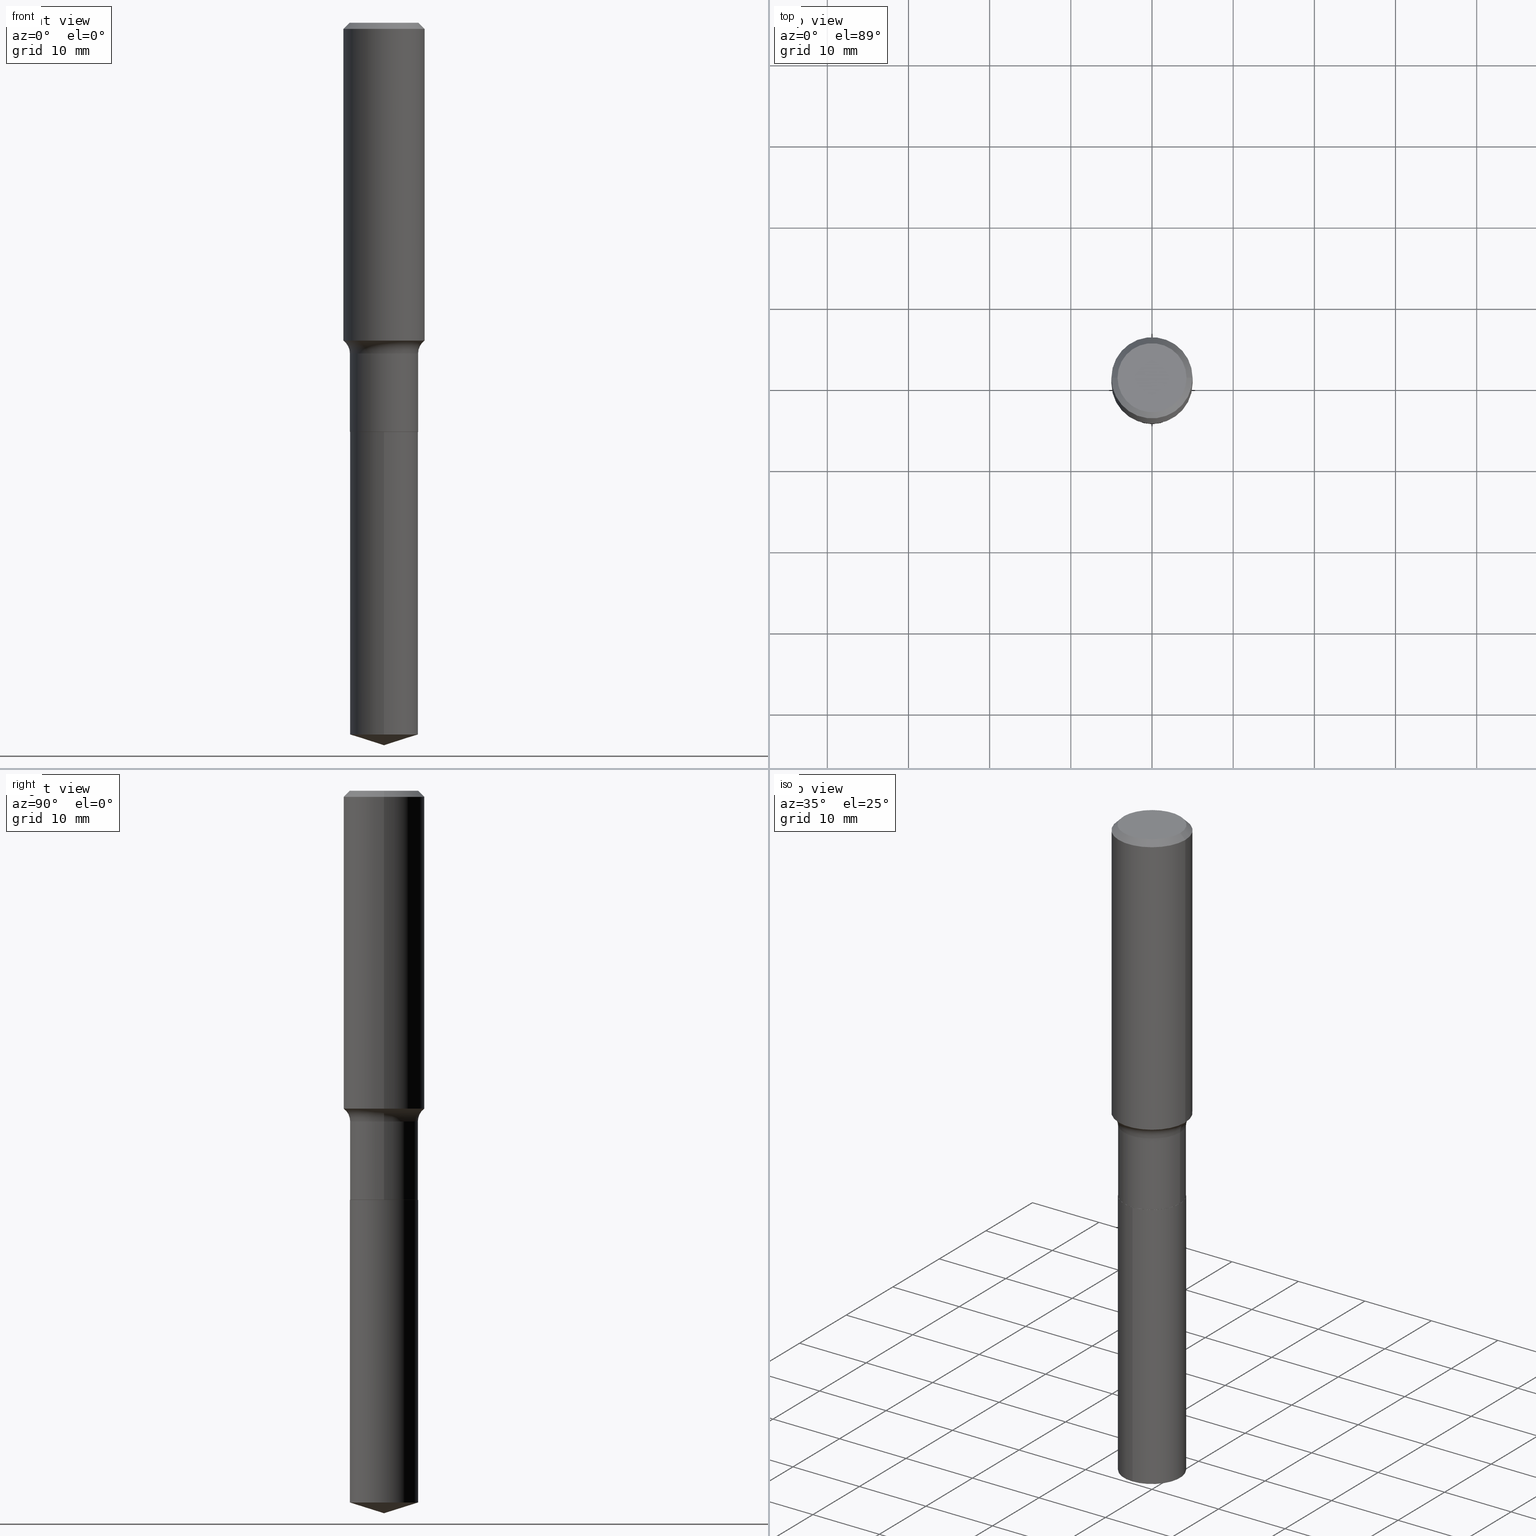
[diagram: canonical four-view strip — front | top / right | iso, engineering-drawing reading convention]
A machine part, canonical four-view strip (front | top / right | iso — engineering-drawing reading convention). The complete STEP part file that produces these views, byte-faithful:
ISO-10303-21;
HEADER;
FILE_DESCRIPTION (( 'STEP AP203' ),
    '1' );
FILE_NAME ('63182.STEP',
    '2024-04-19T14:58:55',
    ( '' ),
    ( '' ),
    'SwSTEP 2.0',
    'SolidWorks 2023',
    '' );
FILE_SCHEMA (( 'CONFIG_CONTROL_DESIGN' ));
ENDSEC;

DATA;
#1 = CARTESIAN_POINT ( 'NONE',  ( -0.1968500000000001082, 1.398703375343757985E-15, -9.682923725166787881E-30 ) ) ;
#2 = DIRECTION ( 'NONE',  ( 1.000000000000000000, -6.982962677686265922E-15, 4.876176775795934672E-29 ) ) ;
#3 = AXIS2_PLACEMENT_3D ( 'NONE', #464, #320, #470 ) ;
#4 = CALENDAR_DATE ( 2024, 19, 4 ) ;
#5 = PERSON_AND_ORGANIZATION_ROLE ( 'classification_officer' ) ;
#6 = ORIENTED_EDGE ( 'NONE', *, *, #330, .F. ) ;
#7 = APPROVAL_STATUS ( 'not_yet_approved' ) ;
#8 = APPROVAL_ROLE ( '' ) ;
#9 = VECTOR ( 'NONE', #331, 39.37007874015748143 ) ;
#10 = CARTESIAN_POINT ( 'NONE',  ( -0.1648499999999999965, -5.756467572632041393E-15, -1.984199999999999298 ) ) ;
#11 = DATE_TIME_ROLE ( 'creation_date' ) ;
#12 = ORIENTED_EDGE ( 'NONE', *, *, #227, .F. ) ;
#13 = DIRECTION ( 'NONE',  ( -2.445468806185136597E-29, 3.491481338843145583E-15, 1.000000000000000000 ) ) ;
#14 = ORIENTED_EDGE ( 'NONE', *, *, #233, .T. ) ;
#15 = DIRECTION ( 'NONE',  ( -2.445468806185136597E-29, 3.491481338843145583E-15, 1.000000000000000000 ) ) ;
#16 = DIRECTION ( 'NONE',  ( -2.445468806185136597E-29, 3.491481338843145583E-15, 1.000000000000000000 ) ) ;
#17 = CALENDAR_DATE ( 2024, 19, 4 ) ;
#18 = ORIENTED_EDGE ( 'NONE', *, *, #197, .F. ) ;
#19 = ADVANCED_FACE ( 'NONE', ( #44 ), #261, .T. ) ;
#20 = DIRECTION ( 'NONE',  ( 7.105427357601001859E-15, 1.000000000000000000, -3.491481338843145583E-15 ) ) ;
#21 = CIRCLE ( 'NONE', #365, 0.1968500000000001915 ) ;
#22 = ORIENTED_EDGE ( 'NONE', *, *, #336, .T. ) ;
#23 = DIRECTION ( 'NONE',  ( 1.000000000000000000, -6.982962677686265922E-15, 4.876176775795934672E-29 ) ) ;
#24 = MANIFOLD_SOLID_BREP ( 'Body-Move/Copy2[2]', #95 ) ;
#25 = ORIENTED_EDGE ( 'NONE', *, *, #73, .T. ) ;
#26 = COORDINATED_UNIVERSAL_TIME_OFFSET ( 5, 0, .BEHIND. ) ;
#27 = FACE_OUTER_BOUND ( 'NONE', #326, .T. ) ;
#28 = MANIFOLD_SOLID_BREP ( 'Body-Move/Copy2[1]', #307 ) ;
#29 = CARTESIAN_POINT ( 'NONE',  ( -0.1653499999999999415, -5.088136812037507481E-15, -1.603899999999999881 ) ) ;
#30 = CIRCLE ( 'NONE', #445, 0.07800000000000002764 ) ;
#31 = CARTESIAN_POINT ( 'NONE',  ( -0.1653499999999999970, 1.174882413579325636E-15, -8.133459171736486599E-30 ) ) ;
#32 = CARTESIAN_POINT ( 'NONE',  ( -1.154632878755375361E-15, -0.1653500000000069081, -1.984199999999999076 ) ) ;
#33 = CARTESIAN_POINT ( 'NONE',  ( 8.567579490425571206E-29, -1.223537480620358617E-14, -3.503899999999999793 ) ) ;
#34 = DIRECTION ( 'NONE',  ( -2.445468806185136597E-29, 3.491481338843145583E-15, 1.000000000000000000 ) ) ;
#35 = DIRECTION ( 'NONE',  ( 1.000000000000000000, -6.982962677686265922E-15, 4.876176775795935793E-29 ) ) ;
#36 = CARTESIAN_POINT ( 'NONE',  ( 3.769142679938693418E-29, -5.381336820636961571E-15, -1.541276122764555279 ) ) ;
#37 = APPLICATION_CONTEXT ( 'configuration controlled 3d designs of mechanical parts and assemblies' ) ;
#38 = CARTESIAN_POINT ( 'NONE',  ( 4.852299205232546160E-29, -6.927797272532566919E-15, -1.984199999999999298 ) ) ;
#39 = DIRECTION ( 'NONE',  ( -2.445468806185136877E-29, 3.491481338843145188E-15, 1.000000000000000000 ) ) ;
#40 = AXIS2_PLACEMENT_3D ( 'NONE', #117, #110, #263 ) ;
#41 = AXIS2_PLACEMENT_3D ( 'NONE', #270, #168, #79 ) ;
#42 = DIRECTION ( 'NONE',  ( -2.445155252839855977E-29, 3.491930365079935530E-15, 1.000000000000000000 ) ) ;
#43 = DIRECTION ( 'NONE',  ( -2.445468806185136597E-29, 3.491481338843145583E-15, 1.000000000000000000 ) ) ;
#44 = FACE_OUTER_BOUND ( 'NONE', #388, .T. ) ;
#45 = ADVANCED_FACE ( 'NONE', ( #425 ), #98, .T. ) ;
#46 = DIRECTION ( 'NONE',  ( -6.982962677686265133E-15, -1.000000000000000000, 3.304321734096478263E-15 ) ) ;
#47 = DIRECTION ( 'NONE',  ( -6.982962677686265133E-15, -1.000000000000000000, 3.304321734096478263E-15 ) ) ;
#48 = CIRCLE ( 'NONE', #173, 0.1968500000000000527 ) ;
#49 = AXIS2_PLACEMENT_3D ( 'NONE', #453, #115, #491 ) ;
#50 = ORIENTED_EDGE ( 'NONE', *, *, #433, .F. ) ;
#51 = EDGE_CURVE ( 'NONE', #319, #81, #244, .T. ) ;
#52 = EDGE_LOOP ( 'NONE', ( #252, #14, #175 ) ) ;
#53 = AXIS2_PLACEMENT_3D ( 'NONE', #265, #34, #407 ) ;
#54 = LOCAL_TIME ( 10, 58, 55.00000000000000000, #26 ) ;
#55 = EDGE_CURVE ( 'NONE', #72, #324, #429, .T. ) ;
#56 = ORIENTED_EDGE ( 'NONE', *, *, #55, .F. ) ;
#57 = ADVANCED_FACE ( 'NONE', ( #442 ), #287, .T. ) ;
#58 = VERTEX_POINT ( 'NONE', #103 ) ;
#59 = LINE ( 'NONE', #467, #371 ) ;
#60 = PERSON_AND_ORGANIZATION_ROLE ( 'creator' ) ;
#61 = AXIS2_PLACEMENT_3D ( 'NONE', #411, #405, #300 ) ;
#62 = ORIENTED_EDGE ( 'NONE', *, *, #64, .T. ) ;
#63 = ORGANIZATION ( 'UNSPECIFIED', 'UNSPECIFIED', '' ) ;
#64 = EDGE_CURVE ( 'NONE', #455, #282, #255, .T. ) ;
#65 = DIRECTION ( 'NONE',  ( -2.445155252839855977E-29, 3.491930365079935530E-15, 1.000000000000000000 ) ) ;
#66 = LINE ( 'NONE', #32, #237 ) ;
#67 = AXIS2_PLACEMENT_3D ( 'NONE', #396, #69, #364 ) ;
#68 = PLANE ( 'NONE',  #398 ) ;
#69 = DIRECTION ( 'NONE',  ( -2.445468806185136597E-29, 3.491481338843145583E-15, 1.000000000000000000 ) ) ;
#70 = DIRECTION ( 'NONE',  ( -2.445155252839855977E-29, 3.491930365079935136E-15, 1.000000000000000000 ) ) ;
#71 = FACE_OUTER_BOUND ( 'NONE', #472, .T. ) ;
#72 = VERTEX_POINT ( 'NONE', #29 ) ;
#73 = EDGE_CURVE ( 'NONE', #282, #373, #444, .T. ) ;
#74 = FACE_OUTER_BOUND ( 'NONE', #248, .T. ) ;
#75 = CIRCLE ( 'NONE', #214, 0.07800000000000002764 ) ;
#76 = CARTESIAN_POINT ( 'NONE',  ( 4.852299205232546721E-29, -6.927797272532567708E-15, -1.984199999999999520 ) ) ;
#77 = AXIS2_PLACEMENT_3D ( 'NONE', #102, #258, #192 ) ;
#78 = DIRECTION ( 'NONE',  ( 1.000000000000000000, -6.982962677686266711E-15, 0.000000000000000000 ) ) ;
#79 = DIRECTION ( 'NONE',  ( 1.000000000000000000, -6.982962677686266711E-15, 0.000000000000000000 ) ) ;
#80 = APPLICATION_PROTOCOL_DEFINITION ( 'international standard', 'config_control_design', 1994, #108 ) ;
#81 = VERTEX_POINT ( 'NONE', #262 ) ;
#82 = PERSON_AND_ORGANIZATION ( #156, #63 ) ;
#83 = VERTEX_POINT ( 'NONE', #402 ) ;
#84 = DIRECTION ( 'NONE',  ( -6.982962677686265922E-15, -1.000000000000000000, 3.500519750498711532E-15 ) ) ;
#85 = ADVANCED_FACE ( 'NONE', ( #395 ), #213, .T. ) ;
#86 = CIRCLE ( 'NONE', #61, 0.1653500000000000247 ) ;
#87 =( GEOMETRIC_REPRESENTATION_CONTEXT ( 3 ) GLOBAL_UNCERTAINTY_ASSIGNED_CONTEXT ( ( #449 ) ) GLOBAL_UNIT_ASSIGNED_CONTEXT ( ( #375, #447, #486 ) ) REPRESENTATION_CONTEXT ( 'NONE', 'WORKASPACE' ) );
#88 = APPROVAL_PERSON_ORGANIZATION ( #424, #137, #235 ) ;
#89 = ORIENTED_EDGE ( 'NONE', *, *, #157, .F. ) ;
#90 = CARTESIAN_POINT ( 'NONE',  ( 7.220858017463213864E-31, -1.030947152326917226E-16, -0.02952750000000021330 ) ) ;
#91 = PERSON_AND_ORGANIZATION ( #156, #63 ) ;
#92 = ORIENTED_EDGE ( 'NONE', *, *, #238, .F. ) ;
#93 = EDGE_CURVE ( 'NONE', #129, #290, #172, .T. ) ;
#94 = ORIENTED_EDGE ( 'NONE', *, *, #245, .F. ) ;
#95 = CLOSED_SHELL ( 'NONE', ( #57, #403, #118, #368, #19, #130, #105, #45, #85, #382, #492, #332 ) ) ;
#96 = EDGE_CURVE ( 'NONE', #136, #72, #177, .T. ) ;
#97 = CIRCLE ( 'NONE', #3, 0.1653499999999999970 ) ;
#98 = CYLINDRICAL_SURFACE ( 'NONE', #414, 0.1968500000000001082 ) ;
#99 = LOCAL_TIME ( 10, 58, 55.00000000000000000, #280 ) ;
#100 = EDGE_LOOP ( 'NONE', ( #351, #431 ) ) ;
#101 = ORIENTED_EDGE ( 'NONE', *, *, #51, .F. ) ;
#102 = CARTESIAN_POINT ( 'NONE',  ( -1.001697619218021790E-46, 1.430158722866389718E-32, 4.096137381448108366E-18 ) ) ;
#103 = CARTESIAN_POINT ( 'NONE',  ( -0.1673224999999999851, 1.219954130253505460E-15, 4.096137381439757534E-18 ) ) ;
#104 = CARTESIAN_POINT ( 'NONE',  ( 0.2433499999999999552, -7.299290886985473134E-15, -1.603899999999999881 ) ) ;
#105 = ADVANCED_FACE ( 'NONE', ( #363 ), #264, .F. ) ;
#106 = PLANE ( 'NONE',  #308 ) ;
#107 = CIRCLE ( 'NONE', #278, 0.1653499999999999415 ) ;
#108 = APPLICATION_CONTEXT ( 'configuration controlled 3d designs of mechanical parts and assemblies' ) ;
#109 = CC_DESIGN_PERSON_AND_ORGANIZATION_ASSIGNMENT ( #348, #276, ( #485 ) ) ;
#110 = DIRECTION ( 'NONE',  ( -2.445468806185136597E-29, 3.491481338843145583E-15, 1.000000000000000000 ) ) ;
#111 = DIRECTION ( 'NONE',  ( 1.000000000000000000, -6.982962677686268288E-15, 0.000000000000000000 ) ) ;
#112 = ADVANCED_FACE ( 'NONE', ( #27 ), #106, .F. ) ;
#113 = CIRCLE ( 'NONE', #40, 0.1653500000000000247 ) ;
#114 = DIRECTION ( 'NONE',  ( 2.445468806185136597E-29, -3.491481338843145583E-15, -1.000000000000000000 ) ) ;
#115 = DIRECTION ( 'NONE',  ( 0.000000000000000000, 0.000000000000000000, 1.000000000000000000 ) ) ;
#116 = ORIENTED_EDGE ( 'NONE', *, *, #289, .T. ) ;
#117 = CARTESIAN_POINT ( 'NONE',  ( 4.851076470829453919E-29, -6.926051531863145416E-15, -1.983699999999999353 ) ) ;
#118 = ADVANCED_FACE ( 'NONE', ( #193 ), #341, .T. ) ;
#119 = DIRECTION ( 'NONE',  ( -6.982962677686265133E-15, -1.000000000000000000, 3.304321734096478263E-15 ) ) ;
#120 = APPROVAL_DATE_TIME ( #347, #242 ) ;
#121 = CARTESIAN_POINT ( 'NONE',  ( -1.001697619218021790E-46, 1.430158722866389718E-32, 4.096137381448108366E-18 ) ) ;
#122 = CONICAL_SURFACE ( 'NONE', #147, 0.1648499999999999965, 0.7853981633975849475 ) ;
#123 = ORIENTED_EDGE ( 'NONE', *, *, #55, .T. ) ;
#124 = APPROVAL_STATUS ( 'not_yet_approved' ) ;
#125 = CONICAL_SURFACE ( 'NONE', #266, 0.1968500000000000527, 0.7853981633974456145 ) ;
#126 = CC_DESIGN_PERSON_AND_ORGANIZATION_ASSIGNMENT ( #82, #317, ( #189 ) ) ;
#127 = ORIENTED_EDGE ( 'NONE', *, *, #267, .T. ) ;
#128 = DATE_AND_TIME ( #413, #345 ) ;
#129 = VERTEX_POINT ( 'NONE', #436 ) ;
#130 = ADVANCED_FACE ( 'NONE', ( #391 ), #216, .T. ) ;
#131 = EDGE_LOOP ( 'NONE', ( #22, #459, #419, #101 ) ) ;
#132 = DIRECTION ( 'NONE',  ( 1.000000000000000000, -6.982962677686266711E-15, 0.000000000000000000 ) ) ;
#133 = AXIS2_PLACEMENT_3D ( 'NONE', #369, #184, #183 ) ;
#134 = VECTOR ( 'NONE', #376, 39.37007874015748143 ) ;
#135 = CC_DESIGN_APPROVAL ( #164, ( #328 ) ) ;
#136 = VERTEX_POINT ( 'NONE', #155 ) ;
#137 = APPROVAL ( #7, 'UNSPECIFIED' ) ;
#138 = APPROVAL_STATUS ( 'not_yet_approved' ) ;
#139 = ORIENTED_EDGE ( 'NONE', *, *, #456, .F. ) ;
#140 = CARTESIAN_POINT ( 'NONE',  ( 0.000000000000000000, 0.000000000000000000, 0.000000000000000000 ) ) ;
#141 = EDGE_LOOP ( 'NONE', ( #355, #408, #159, #430 ) ) ;
#142 = CARTESIAN_POINT ( 'NONE',  ( 7.220858017463213864E-31, -1.030947152326917226E-16, -0.02952750000000021330 ) ) ;
#143 = AXIS2_PLACEMENT_3D ( 'NONE', #153, #43, #2 ) ;
#144 = EDGE_CURVE ( 'NONE', #243, #417, #151, .T. ) ;
#145 = DIRECTION ( 'NONE',  ( -2.445468806185136597E-29, 3.491481338843145583E-15, 1.000000000000000000 ) ) ;
#146 = LENGTH_MEASURE_WITH_UNIT ( LENGTH_MEASURE( 0.02539999999999999897 ), #185 );
#147 = AXIS2_PLACEMENT_3D ( 'NONE', #306, #450, #111 ) ;
#148 = DIRECTION ( 'NONE',  ( -6.982962677686265922E-15, -1.000000000000000000, 3.500519750498711532E-15 ) ) ;
#149 = CIRCLE ( 'NONE', #77, 0.1673224999999999851 ) ;
#150 = DIRECTION ( 'NONE',  ( 1.000000000000000000, -6.982962677686266711E-15, 0.000000000000000000 ) ) ;
#151 = LINE ( 'NONE', #377, #205 ) ;
#152 = DIRECTION ( 'NONE',  ( -6.982962677686265133E-15, -1.000000000000000000, 3.304321734096478263E-15 ) ) ;
#153 = CARTESIAN_POINT ( 'NONE',  ( 0.000000000000000000, 0.000000000000000000, 0.000000000000000000 ) ) ;
#154 = CIRCLE ( 'NONE', #219, 0.1653499999999999970 ) ;
#155 = CARTESIAN_POINT ( 'NONE',  ( -0.1653500000000000247, -5.088136812037506692E-15, -1.983699999999999353 ) ) ;
#156 = PERSON ( 'UNSPECIFIED', 'UNSPECIFIED', 'UNSPECIFIED', ('UNSPECIFIED'), ('UNSPECIFIED'), ('UNSPECIFIED') ) ;
#157 = EDGE_CURVE ( 'NONE', #83, #417, #160, .T. ) ;
#158 = EDGE_CURVE ( 'NONE', #290, #129, #154, .T. ) ;
#159 = ORIENTED_EDGE ( 'NONE', *, *, #412, .T. ) ;
#160 = LINE ( 'NONE', #304, #134 ) ;
#161 = ORIENTED_EDGE ( 'NONE', *, *, #197, .T. ) ;
#162 = COORDINATED_UNIVERSAL_TIME_OFFSET ( 5, 0, .BEHIND. ) ;
#163 = TOROIDAL_SURFACE ( 'NONE', #438, 0.2433499999999999552, 0.07799999999999999989 ) ;
#164 = APPROVAL ( #138, 'UNSPECIFIED' ) ;
#165 = EDGE_LOOP ( 'NONE', ( #50, #127, #123, #286 ) ) ;
#166 = DIRECTION ( 'NONE',  ( 1.000000000000000000, -6.982962677686266711E-15, 4.876176775795935793E-29 ) ) ;
#167 = DIRECTION ( 'NONE',  ( 6.776566513254256560E-15, 0.9537169507482285979, 0.3007057995042677900 ) ) ;
#168 = DIRECTION ( 'NONE',  ( -2.445468806185136597E-29, 3.491481338843145583E-15, 1.000000000000000000 ) ) ;
#169 = ORIENTED_EDGE ( 'NONE', *, *, #217, .T. ) ;
#170 = ORIENTED_EDGE ( 'NONE', *, *, #144, .T. ) ;
#171 = CARTESIAN_POINT ( 'NONE',  ( 0.1648499999999999965, -8.078938669949147393E-15, -1.984199999999999298 ) ) ;
#172 = CIRCLE ( 'NONE', #187, 0.1653499999999999970 ) ;
#173 = AXIS2_PLACEMENT_3D ( 'NONE', #90, #16, #132 ) ;
#174 = LOCAL_TIME ( 10, 58, 55.00000000000000000, #480 ) ;
#175 = ORIENTED_EDGE ( 'NONE', *, *, #73, .F. ) ;
#176 = DIRECTION ( 'NONE',  ( -2.445468806185136597E-29, 3.491481338843145583E-15, 1.000000000000000000 ) ) ;
#177 = LINE ( 'NONE', #31, #335 ) ;
#178 = ORIENTED_EDGE ( 'NONE', *, *, #238, .T. ) ;
#179 = ORIENTED_EDGE ( 'NONE', *, *, #397, .F. ) ;
#180 = CARTESIAN_POINT ( 'NONE',  ( -0.1968500000000001915, -3.982633445293202995E-15, -1.541276122764555279 ) ) ;
#181 = DIRECTION ( 'NONE',  ( 1.000000000000000000, -6.982962677686268288E-15, 4.883557194083112901E-29 ) ) ;
#182 = EDGE_CURVE ( 'NONE', #243, #58, #241, .T. ) ;
#183 = DIRECTION ( 'NONE',  ( -6.982962677686265133E-15, -1.000000000000000000, 3.304321734096478263E-15 ) ) ;
#184 = DIRECTION ( 'NONE',  ( -2.445155252839855977E-29, 3.491930365079935530E-15, 1.000000000000000000 ) ) ;
#185 =( LENGTH_UNIT ( ) NAMED_UNIT ( * ) SI_UNIT ( $, .METRE. ) );
#186 = DIRECTION ( 'NONE',  ( -2.445468806185136597E-29, 3.491481338843145583E-15, 1.000000000000000000 ) ) ;
#187 = AXIS2_PLACEMENT_3D ( 'NONE', #76, #65, #152 ) ;
#188 = CARTESIAN_POINT ( 'NONE',  ( -0.1648499999999999965, -5.753818345457930192E-15, -1.984199999999999298 ) ) ;
#189 = PRODUCT_DEFINITION_FORMATION_WITH_SPECIFIED_SOURCE ( 'ANY', '', #485, .NOT_KNOWN. ) ;
#190 = EDGE_CURVE ( 'NONE', #81, #324, #312, .T. ) ;
#191 = DIRECTION ( 'NONE',  ( -0.7071067811865455743, 2.468850131082236945E-15, -0.7071067811865493491 ) ) ;
#192 = DIRECTION ( 'NONE',  ( 1.000000000000000000, -6.982962677686267499E-15, 4.876294436782262290E-29 ) ) ;
#193 = FACE_OUTER_BOUND ( 'NONE', #383, .T. ) ;
#194 = CARTESIAN_POINT ( 'NONE',  ( 8.567579490425571206E-29, -1.223537480620358617E-14, -3.503899999999999793 ) ) ;
#195 = DIRECTION ( 'NONE',  ( -1.000000000000000000, 7.105427357601001859E-15, 0.000000000000000000 ) ) ;
#196 = DIRECTION ( 'NONE',  ( 1.000000000000000000, -6.982962677686267499E-15, 4.876294436782262290E-29 ) ) ;
#197 = EDGE_CURVE ( 'NONE', #58, #474, #451, .T. ) ;
#198 = VECTOR ( 'NONE', #309, 39.37007874015748143 ) ;
#199 = PERSON_AND_ORGANIZATION_ROLE ( 'design_supplier' ) ;
#200 = ORIENTED_EDGE ( 'NONE', *, *, #93, .F. ) ;
#201 = ORIENTED_EDGE ( 'NONE', *, *, #51, .T. ) ;
#202 = APPLICATION_PROTOCOL_DEFINITION ( 'international standard', 'config_control_design', 1994, #37 ) ;
#203 = ORIENTED_EDGE ( 'NONE', *, *, #182, .F. ) ;
#204 = ORIENTED_EDGE ( 'NONE', *, *, #182, .T. ) ;
#205 = VECTOR ( 'NONE', #379, 39.37007874015748854 ) ;
#206 = ORIENTED_EDGE ( 'NONE', *, *, #96, .T. ) ;
#207 = CC_DESIGN_PERSON_AND_ORGANIZATION_ASSIGNMENT ( #91, #60, ( #328 ) ) ;
#208 = ORIENTED_EDGE ( 'NONE', *, *, #352, .F. ) ;
#209 = CARTESIAN_POINT ( 'NONE',  ( -0.2433499999999999552, -3.870881171898316545E-15, -1.603899999999999881 ) ) ;
#210 = DIRECTION ( 'NONE',  ( -2.445468806185136597E-29, 3.491481338843145583E-15, 1.000000000000000000 ) ) ;
#211 = DIMENSIONAL_EXPONENTS ( 1.000000000000000000, 0.000000000000000000, 0.000000000000000000, 0.000000000000000000, 0.000000000000000000, 0.000000000000000000, 0.000000000000000000 ) ;
#212 = ORIENTED_EDGE ( 'NONE', *, *, #233, .F. ) ;
#213 = CONICAL_SURFACE ( 'NONE', #384, 0.1968500000000000527, 0.7853981633974456145 ) ;
#214 = AXIS2_PLACEMENT_3D ( 'NONE', #104, #394, #334 ) ;
#215 = ORIENTED_EDGE ( 'NONE', *, *, #441, .T. ) ;
#216 = CYLINDRICAL_SURFACE ( 'NONE', #143, 0.1653499999999999970 ) ;
#217 = EDGE_CURVE ( 'NONE', #136, #81, #113, .T. ) ;
#218 = AXIS2_PLACEMENT_3D ( 'NONE', #140, #210, #23 ) ;
#219 = AXIS2_PLACEMENT_3D ( 'NONE', #346, #484, #47 ) ;
#220 = ADVANCED_FACE ( 'NONE', ( #272 ), #458, .T. ) ;
#221 = FACE_OUTER_BOUND ( 'NONE', #100, .T. ) ;
#222 = CC_DESIGN_APPROVAL ( #137, ( #189 ) ) ;
#223 = CARTESIAN_POINT ( 'NONE',  ( 1.174882413579409452E-15, 0.1653499999999878955, -3.451765345258860584 ) ) ;
#224 = LINE ( 'NONE', #435, #9 ) ;
#225 = CARTESIAN_POINT ( 'NONE',  ( 7.148409496949961004E-29, -3.639636648311379260E-15, -1.984199999999999520 ) ) ;
#226 = ADVANCED_FACE ( 'NONE', ( #74 ), #274, .T. ) ;
#227 = EDGE_CURVE ( 'NONE', #324, #72, #107, .T. ) ;
#228 = DIRECTION ( 'NONE',  ( -2.438088387897960049E-29, 3.491481338843145188E-15, 1.000000000000000000 ) ) ;
#229 = AXIS2_PLACEMENT_3D ( 'NONE', #476, #297, #443 ) ;
#230 = CARTESIAN_POINT ( 'NONE',  ( 4.852299205232546721E-29, -6.927797272532567708E-15, -1.984199999999999520 ) ) ;
#231 = CARTESIAN_POINT ( 'NONE',  ( 4.852299205232546721E-29, -6.927797272532567708E-15, -1.984199999999999520 ) ) ;
#232 = DIRECTION ( 'NONE',  ( -2.445468806185136597E-29, 3.491481338843145583E-15, 1.000000000000000000 ) ) ;
#233 = EDGE_CURVE ( 'NONE', #455, #373, #59, .T. ) ;
#234 = MECHANICAL_CONTEXT ( 'NONE', #108, 'mechanical' ) ;
#235 = APPROVAL_ROLE ( '' ) ;
#236 = CONICAL_SURFACE ( 'NONE', #288, 124.8659371009148060, 1.265363707695891016 ) ;
#237 = VECTOR ( 'NONE', #70, 39.37007874015748143 ) ;
#238 = EDGE_CURVE ( 'NONE', #373, #282, #97, .T. ) ;
#239 = ORIENTED_EDGE ( 'NONE', *, *, #93, .T. ) ;
#240 = DIRECTION ( 'NONE',  ( 0.7071067811866441621, -2.468850131083269169E-15, 0.7071067811864508723 ) ) ;
#241 = CIRCLE ( 'NONE', #482, 0.1673224999999999851 ) ;
#242 = APPROVAL ( #124, 'UNSPECIFIED' ) ;
#243 = VERTEX_POINT ( 'NONE', #285 ) ;
#244 = LINE ( 'NONE', #171, #359 ) ;
#245 = EDGE_CURVE ( 'NONE', #417, #474, #48, .T. ) ;
#246 = ORIENTED_EDGE ( 'NONE', *, *, #479, .T. ) ;
#247 = DATE_AND_TIME ( #17, #54 ) ;
#248 = EDGE_LOOP ( 'NONE', ( #25, #422, #310, #139 ) ) ;
#249 = AXIS2_PLACEMENT_3D ( 'NONE', #230, #409, #46 ) ;
#250 = CARTESIAN_POINT ( 'NONE',  ( 7.220858017463213864E-31, -1.030947152326917226E-16, -0.02952750000000021330 ) ) ;
#251 = CARTESIAN_POINT ( 'NONE',  ( 0.000000000000000000, 0.000000000000000000, 0.000000000000000000 ) ) ;
#252 = ORIENTED_EDGE ( 'NONE', *, *, #64, .F. ) ;
#253 = ORIENTED_EDGE ( 'NONE', *, *, #190, .F. ) ;
#254 = FACE_OUTER_BOUND ( 'NONE', #277, .T. ) ;
#255 = LINE ( 'NONE', #33, #343 ) ;
#256 = PRODUCT_RELATED_PRODUCT_CATEGORY ( 'detail', '', ( #485 ) ) ;
#257 = AXIS2_PLACEMENT_3D ( 'NONE', #481, #145, #298 ) ;
#258 = DIRECTION ( 'NONE',  ( -2.445468806185136597E-29, 3.491481338843145583E-15, 1.000000000000000000 ) ) ;
#259 = VECTOR ( 'NONE', #465, 39.37007874015748143 ) ;
#260 = ADVANCED_FACE ( 'NONE', ( #386 ), #236, .T. ) ;
#261 = CYLINDRICAL_SURFACE ( 'NONE', #218, 0.1653499999999999970 ) ;
#262 = CARTESIAN_POINT ( 'NONE',  ( 0.1653500000000000247, -8.080684410618569686E-15, -1.983699999999999353 ) ) ;
#263 = DIRECTION ( 'NONE',  ( 1.000000000000000000, -6.982962677686269866E-15, 0.000000000000000000 ) ) ;
#264 = TOROIDAL_SURFACE ( 'NONE', #257, 0.2433499999999999552, 0.07799999999999999989 ) ;
#265 = CARTESIAN_POINT ( 'NONE',  ( 4.852299205232546160E-29, -6.927797272532566919E-15, -1.984199999999999298 ) ) ;
#266 = AXIS2_PLACEMENT_3D ( 'NONE', #142, #295, #440 ) ;
#267 = EDGE_CURVE ( 'NONE', #385, #72, #30, .T. ) ;
#268 = CARTESIAN_POINT ( 'NONE',  ( 4.852299205232546721E-29, -6.927797272532567708E-15, -1.984199999999999520 ) ) ;
#269 = DIRECTION ( 'NONE',  ( 2.445155252839855977E-29, -3.491930365079935136E-15, -1.000000000000000000 ) ) ;
#270 = CARTESIAN_POINT ( 'NONE',  ( 3.769142679938693418E-29, -5.381336820636961571E-15, -1.541276122764555279 ) ) ;
#271 = CARTESIAN_POINT ( 'NONE',  ( 3.922287418240340052E-29, -5.599986919370520029E-15, -1.603899999999999881 ) ) ;
#272 = FACE_OUTER_BOUND ( 'NONE', #466, .T. ) ;
#273 = DATE_AND_TIME ( #468, #416 ) ;
#274 = CYLINDRICAL_SURFACE ( 'NONE', #249, 0.1653499999999999970 ) ;
#275 = CC_DESIGN_PERSON_AND_ORGANIZATION_ASSIGNMENT ( #283, #199, ( #189 ) ) ;
#276 = PERSON_AND_ORGANIZATION_ROLE ( 'design_owner' ) ;
#277 = EDGE_LOOP ( 'NONE', ( #215, #204 ) ) ;
#278 = AXIS2_PLACEMENT_3D ( 'NONE', #323, #13, #380 ) ;
#279 = CC_DESIGN_SECURITY_CLASSIFICATION ( #462, ( #189 ) ) ;
#280 = COORDINATED_UNIVERSAL_TIME_OFFSET ( 5, 0, .BEHIND. ) ;
#281 = PERSON_AND_ORGANIZATION ( #156, #63 ) ;
#282 = VERTEX_POINT ( 'NONE', #372 ) ;
#283 = PERSON_AND_ORGANIZATION ( #156, #63 ) ;
#284 = VERTEX_POINT ( 'NONE', #188 ) ;
#285 = CARTESIAN_POINT ( 'NONE',  ( 0.1673224999999999851, -1.300749711163072594E-15, 4.096137381456741925E-18 ) ) ;
#286 = ORIENTED_EDGE ( 'NONE', *, *, #412, .F. ) ;
#287 = CONICAL_SURFACE ( 'NONE', #67, 0.1648499999999999965, 0.7853981633975849475 ) ;
#288 = AXIS2_PLACEMENT_3D ( 'NONE', #356, #426, #84 ) ;
#289 = EDGE_CURVE ( 'NONE', #81, #136, #86, .T. ) ;
#290 = VERTEX_POINT ( 'NONE', #337 ) ;
#291 = ORIENTED_EDGE ( 'NONE', *, *, #433, .T. ) ;
#292 = ORIENTED_EDGE ( 'NONE', *, *, #157, .T. ) ;
#293 = ORIENTED_EDGE ( 'NONE', *, *, #158, .T. ) ;
#294 = ORIENTED_EDGE ( 'NONE', *, *, #96, .F. ) ;
#295 = DIRECTION ( 'NONE',  ( 2.445468806185136597E-29, -3.491481338843145583E-15, -1.000000000000000000 ) ) ;
#296 = APPROVAL_ROLE ( '' ) ;
#297 = DIRECTION ( 'NONE',  ( 2.438088387897960049E-29, -3.491481338843145188E-15, -1.000000000000000000 ) ) ;
#298 = DIRECTION ( 'NONE',  ( 1.000000000000000000, -6.982962677686268288E-15, 4.883557194083112901E-29 ) ) ;
#299 = DIRECTION ( 'NONE',  ( -6.659769872151631300E-15, -0.9537169507482265995, 0.3007057995042744514 ) ) ;
#300 = DIRECTION ( 'NONE',  ( 1.000000000000000000, -6.982962677686269866E-15, 0.000000000000000000 ) ) ;
#301 = FACE_OUTER_BOUND ( 'NONE', #469, .T. ) ;
#302 = DIRECTION ( 'NONE',  ( 1.000000000000000000, -6.982962677686267499E-15, 0.000000000000000000 ) ) ;
#303 = CARTESIAN_POINT ( 'NONE',  ( 0.1648499999999999965, -8.078938669949147393E-15, -1.984199999999999298 ) ) ;
#304 = CARTESIAN_POINT ( 'NONE',  ( 0.1968500000000001082, -1.374596203102542397E-15, 9.598753983154305062E-30 ) ) ;
#305 = EDGE_CURVE ( 'NONE', #83, #385, #21, .T. ) ;
#306 = CARTESIAN_POINT ( 'NONE',  ( 4.852299205232546160E-29, -6.927797272532566919E-15, -1.984199999999999298 ) ) ;
#307 = CLOSED_SHELL ( 'NONE', ( #226, #260, #322, #220, #112 ) ) ;
#308 = AXIS2_PLACEMENT_3D ( 'NONE', #231, #269, #374 ) ;
#309 = DIRECTION ( 'NONE',  ( -2.445468806185136877E-29, 3.491481338843145188E-15, 1.000000000000000000 ) ) ;
#310 = ORIENTED_EDGE ( 'NONE', *, *, #158, .F. ) ;
#311 = CIRCLE ( 'NONE', #41, 0.1968500000000001915 ) ;
#312 = LINE ( 'NONE', #457, #415 ) ;
#313 = EDGE_LOOP ( 'NONE', ( #294, #169, #432, #56 ) ) ;
#314 = CARTESIAN_POINT ( 'NONE',  ( 0.1968500000000000527, -1.477690918335233688E-15, -0.02952750000000021330 ) ) ;
#315 = EDGE_LOOP ( 'NONE', ( #203, #170, #434, #18 ) ) ;
#316 = CALENDAR_DATE ( 2024, 19, 4 ) ;
#317 = PERSON_AND_ORGANIZATION_ROLE ( 'creator' ) ;
#318 = AXIS2_PLACEMENT_3D ( 'NONE', #340, #487, #78 ) ;
#319 = VERTEX_POINT ( 'NONE', #303 ) ;
#320 = DIRECTION ( 'NONE',  ( -2.445155252839855977E-29, 3.491930365079935530E-15, 1.000000000000000000 ) ) ;
#321 = ORIENTED_EDGE ( 'NONE', *, *, #305, .T. ) ;
#322 = ADVANCED_FACE ( 'NONE', ( #71 ), #471, .T. ) ;
#323 = CARTESIAN_POINT ( 'NONE',  ( 3.922287418240340052E-29, -5.599986919370520029E-15, -1.603899999999999881 ) ) ;
#324 = VERTEX_POINT ( 'NONE', #448 ) ;
#325 = AXIS2_PLACEMENT_3D ( 'NONE', #489, #410, #329 ) ;
#326 = EDGE_LOOP ( 'NONE', ( #293, #239 ) ) ;
#327 = PLANE ( 'NONE',  #229 ) ;
#328 = PRODUCT_DEFINITION ( 'UNKNOWN', '', #189, #350 ) ;
#329 = DIRECTION ( 'NONE',  ( 1.000000000000000000, -6.982962677686266711E-15, 4.876176775795935793E-29 ) ) ;
#330 = EDGE_CURVE ( 'NONE', #474, #417, #461, .T. ) ;
#331 = DIRECTION ( 'NONE',  ( -2.445155252839855977E-29, 3.491930365079935136E-15, 1.000000000000000000 ) ) ;
#332 = ADVANCED_FACE ( 'NONE', ( #301 ), #122, .T. ) ;
#333 = DIRECTION ( 'NONE',  ( -2.445468806185136877E-29, 3.491481338843145188E-15, 1.000000000000000000 ) ) ;
#334 = DIRECTION ( 'NONE',  ( 1.000000000000000000, -6.982962677686268288E-15, 0.000000000000000000 ) ) ;
#335 = VECTOR ( 'NONE', #333, 39.37007874015748143 ) ;
#336 = EDGE_CURVE ( 'NONE', #319, #284, #389, .T. ) ;
#337 = CARTESIAN_POINT ( 'NONE',  ( -1.154632878755375361E-15, -0.1653500000000069081, -1.984199999999999076 ) ) ;
#338 = CARTESIAN_POINT ( 'NONE',  ( -8.769775319324153567E-28, 1.252430895799993883E-13, 35.86617874015747987 ) ) ;
#339 = CC_DESIGN_APPROVAL ( #242, ( #462 ) ) ;
#340 = CARTESIAN_POINT ( 'NONE',  ( 7.220858017463213864E-31, -1.030947152326917226E-16, -0.02952750000000021330 ) ) ;
#341 = CYLINDRICAL_SURFACE ( 'NONE', #325, 0.1968500000000001082 ) ;
#342 = LINE ( 'NONE', #1, #198 ) ;
#343 = VECTOR ( 'NONE', #299, 39.37007874015748143 ) ;
#344 = VECTOR ( 'NONE', #191, 39.37007874015748854 ) ;
#345 = LOCAL_TIME ( 10, 58, 55.00000000000000000, #162 ) ;
#346 = CARTESIAN_POINT ( 'NONE',  ( 4.852299205232546721E-29, -6.927797272532567708E-15, -1.984199999999999520 ) ) ;
#347 = DATE_AND_TIME ( #4, #99 ) ;
#348 = PERSON_AND_ORGANIZATION ( #156, #63 ) ;
#349 = SECURITY_CLASSIFICATION_LEVEL ( 'unclassified' ) ;
#350 = DESIGN_CONTEXT ( 'detailed design', #37, 'design' ) ;
#351 = ORIENTED_EDGE ( 'NONE', *, *, #336, .F. ) ;
#352 = EDGE_CURVE ( 'NONE', #385, #474, #342, .T. ) ;
#353 = EDGE_LOOP ( 'NONE', ( #439, #387, #161, #475 ) ) ;
#354 = ADVANCED_BREP_SHAPE_REPRESENTATION ( '63182', ( #28, #24, #49 ), #87 ) ;
#355 = ORIENTED_EDGE ( 'NONE', *, *, #267, .F. ) ;
#356 = CARTESIAN_POINT ( 'NONE',  ( -8.769775319324153567E-28, 1.252430895799993883E-13, 35.86617874015747987 ) ) ;
#357 = COORDINATED_UNIVERSAL_TIME_OFFSET ( 5, 0, .BEHIND. ) ;
#358 = ORIENTED_EDGE ( 'NONE', *, *, #427, .F. ) ;
#359 = VECTOR ( 'NONE', #240, 39.37007874015748143 ) ;
#360 = AXIS2_PLACEMENT_3D ( 'NONE', #338, #42, #148 ) ;
#361 = ORIENTED_EDGE ( 'NONE', *, *, #217, .F. ) ;
#362 = EDGE_LOOP ( 'NONE', ( #208, #291, #292, #6 ) ) ;
#363 = FACE_OUTER_BOUND ( 'NONE', #141, .T. ) ;
#364 = DIRECTION ( 'NONE',  ( 1.000000000000000000, -6.982962677686268288E-15, 0.000000000000000000 ) ) ;
#365 = AXIS2_PLACEMENT_3D ( 'NONE', #36, #186, #150 ) ;
#366 = AXIS2_PLACEMENT_3D ( 'NONE', #38, #232, #399 ) ;
#367 = DIRECTION ( 'NONE',  ( -1.000000000000000000, 6.982962677686266711E-15, 0.000000000000000000 ) ) ;
#368 = ADVANCED_FACE ( 'NONE', ( #454 ), #163, .F. ) ;
#369 = CARTESIAN_POINT ( 'NONE',  ( 8.440724318077987590E-29, -1.205243326438100244E-14, -3.451765345258860140 ) ) ;
#370 = AXIS2_PLACEMENT_3D ( 'NONE', #473, #15, #302 ) ;
#371 = VECTOR ( 'NONE', #167, 39.37007874015748143 ) ;
#372 = CARTESIAN_POINT ( 'NONE',  ( -1.154632878755339270E-15, -0.1653500000000120151, -3.451765345258859696 ) ) ;
#373 = VERTEX_POINT ( 'NONE', #223 ) ;
#374 = DIRECTION ( 'NONE',  ( 6.982962677686265922E-15, 1.000000000000000000, -3.491930365079935136E-15 ) ) ;
#375 =( CONVERSION_BASED_UNIT ( 'INCH', #146 ) LENGTH_UNIT ( ) NAMED_UNIT ( #211 ) );
#376 = DIRECTION ( 'NONE',  ( -2.445468806185136877E-29, 3.491481338843145188E-15, 1.000000000000000000 ) ) ;
#377 = CARTESIAN_POINT ( 'NONE',  ( 0.1968500000000000527, -1.453583746094018101E-15, -0.02952750000000021330 ) ) ;
#378 = APPROVAL_DATE_TIME ( #128, #137 ) ;
#379 = DIRECTION ( 'NONE',  ( 0.7071067811865455743, -7.319954787623248157E-15, -0.7071067811865493491 ) ) ;
#380 = DIRECTION ( 'NONE',  ( 1.000000000000000000, -6.982962677686267499E-15, 0.000000000000000000 ) ) ;
#381 = ORIENTED_EDGE ( 'NONE', *, *, #352, .T. ) ;
#382 = ADVANCED_FACE ( 'NONE', ( #254 ), #327, .F. ) ;
#383 = EDGE_LOOP ( 'NONE', ( #321, #381, #94, #89 ) ) ;
#384 = AXIS2_PLACEMENT_3D ( 'NONE', #250, #114, #367 ) ;
#385 = VERTEX_POINT ( 'NONE', #180 ) ;
#386 = FACE_OUTER_BOUND ( 'NONE', #52, .T. ) ;
#387 = ORIENTED_EDGE ( 'NONE', *, *, #441, .F. ) ;
#388 = EDGE_LOOP ( 'NONE', ( #116, #206, #12, #253 ) ) ;
#389 = CIRCLE ( 'NONE', #53, 0.1648499999999999965 ) ;
#390 = CIRCLE ( 'NONE', #366, 0.1648499999999999965 ) ;
#391 = FACE_OUTER_BOUND ( 'NONE', #313, .T. ) ;
#392 = DIRECTION ( 'NONE',  ( -2.445468806185136597E-29, 3.491481338843145583E-15, 1.000000000000000000 ) ) ;
#393 = CC_DESIGN_PERSON_AND_ORGANIZATION_ASSIGNMENT ( #281, #5, ( #462 ) ) ;
#394 = DIRECTION ( 'NONE',  ( -6.982962677686266711E-15, -1.000000000000000000, 3.491481338843145583E-15 ) ) ;
#395 = FACE_OUTER_BOUND ( 'NONE', #353, .T. ) ;
#396 = CARTESIAN_POINT ( 'NONE',  ( 4.852299205232546160E-29, -6.927797272532566919E-15, -1.984199999999999298 ) ) ;
#397 = EDGE_CURVE ( 'NONE', #373, #129, #224, .T. ) ;
#398 = AXIS2_PLACEMENT_3D ( 'NONE', #225, #228, #35 ) ;
#399 = DIRECTION ( 'NONE',  ( 1.000000000000000000, -6.982962677686268288E-15, 0.000000000000000000 ) ) ;
#400 = CC_DESIGN_DATE_AND_TIME_ASSIGNMENT ( #273, #11, ( #328 ) ) ;
#401 = CARTESIAN_POINT ( 'NONE',  ( -0.1968500000000000527, -1.343512392591068446E-15, -0.02952750000000021330 ) ) ;
#402 = CARTESIAN_POINT ( 'NONE',  ( 0.1968500000000001915, -6.755933023739504757E-15, -1.541276122764555279 ) ) ;
#403 = ADVANCED_FACE ( 'NONE', ( #477 ), #125, .T. ) ;
#404 = PRODUCT_DEFINITION_SHAPE ( 'NONE', 'NONE',  #328 ) ;
#405 = DIRECTION ( 'NONE',  ( -2.445468806185136597E-29, 3.491481338843145583E-15, 1.000000000000000000 ) ) ;
#406 = DIRECTION ( 'NONE',  ( -2.445155252839855977E-29, 3.491930365079935530E-15, 1.000000000000000000 ) ) ;
#407 = DIRECTION ( 'NONE',  ( 1.000000000000000000, -6.982962677686268288E-15, 0.000000000000000000 ) ) ;
#408 = ORIENTED_EDGE ( 'NONE', *, *, #305, .F. ) ;
#409 = DIRECTION ( 'NONE',  ( -2.445155252839855977E-29, 3.491930365079935530E-15, 1.000000000000000000 ) ) ;
#410 = DIRECTION ( 'NONE',  ( -2.445468806185136597E-29, 3.491481338843145583E-15, 1.000000000000000000 ) ) ;
#411 = CARTESIAN_POINT ( 'NONE',  ( 4.851076470829453919E-29, -6.926051531863145416E-15, -1.983699999999999353 ) ) ;
#412 = EDGE_CURVE ( 'NONE', #83, #324, #75, .T. ) ;
#413 = CALENDAR_DATE ( 2024, 19, 4 ) ;
#414 = AXIS2_PLACEMENT_3D ( 'NONE', #251, #392, #166 ) ;
#415 = VECTOR ( 'NONE', #39, 39.37007874015748143 ) ;
#416 = LOCAL_TIME ( 10, 58, 55.00000000000000000, #357 ) ;
#417 = VERTEX_POINT ( 'NONE', #314 ) ;
#418 = DIRECTION ( 'NONE',  ( -2.445468806185136597E-29, 3.491481338843145583E-15, 1.000000000000000000 ) ) ;
#419 = ORIENTED_EDGE ( 'NONE', *, *, #289, .F. ) ;
#420 = SHAPE_DEFINITION_REPRESENTATION ( #404, #354 ) ;
#421 = LINE ( 'NONE', #10, #259 ) ;
#422 = ORIENTED_EDGE ( 'NONE', *, *, #397, .T. ) ;
#423 = DATE_AND_TIME ( #316, #174 ) ;
#424 = PERSON_AND_ORGANIZATION ( #156, #63 ) ;
#425 = FACE_OUTER_BOUND ( 'NONE', #362, .T. ) ;
#426 = DIRECTION ( 'NONE',  ( -2.445155252839855977E-29, 3.491930365079935530E-15, 1.000000000000000000 ) ) ;
#427 = EDGE_CURVE ( 'NONE', #284, #136, #421, .T. ) ;
#428 = APPROVAL_DATE_TIME ( #247, #164 ) ;
#429 = CIRCLE ( 'NONE', #370, 0.1653499999999999415 ) ;
#430 = ORIENTED_EDGE ( 'NONE', *, *, #227, .T. ) ;
#431 = ORIENTED_EDGE ( 'NONE', *, *, #479, .F. ) ;
#432 = ORIENTED_EDGE ( 'NONE', *, *, #190, .T. ) ;
#433 = EDGE_CURVE ( 'NONE', #385, #83, #311, .T. ) ;
#434 = ORIENTED_EDGE ( 'NONE', *, *, #245, .T. ) ;
#435 = CARTESIAN_POINT ( 'NONE',  ( 1.174882413579373756E-15, 0.1653499999999930581, -1.984200000000000186 ) ) ;
#436 = CARTESIAN_POINT ( 'NONE',  ( 1.174882413579410044E-15, 0.1653499999999930581, -1.984200000000000186 ) ) ;
#437 = CC_DESIGN_DATE_AND_TIME_ASSIGNMENT ( #423, #490, ( #462 ) ) ;
#438 = AXIS2_PLACEMENT_3D ( 'NONE', #271, #176, #181 ) ;
#439 = ORIENTED_EDGE ( 'NONE', *, *, #144, .F. ) ;
#440 = DIRECTION ( 'NONE',  ( -1.000000000000000000, 6.982962677686266711E-15, 0.000000000000000000 ) ) ;
#441 = EDGE_CURVE ( 'NONE', #58, #243, #149, .T. ) ;
#442 = FACE_OUTER_BOUND ( 'NONE', #131, .T. ) ;
#443 = DIRECTION ( 'NONE',  ( -1.000000000000000000, 6.982962677686265922E-15, -4.876176775795935793E-29 ) ) ;
#444 = CIRCLE ( 'NONE', #133, 0.1653499999999999970 ) ;
#445 = AXIS2_PLACEMENT_3D ( 'NONE', #209, #20, #195 ) ;
#446 = APPROVAL_PERSON_ORGANIZATION ( #460, #242, #8 ) ;
#447 =( NAMED_UNIT ( * ) PLANE_ANGLE_UNIT ( ) SI_UNIT ( $, .RADIAN. ) );
#448 = CARTESIAN_POINT ( 'NONE',  ( 0.1653499999999999415, -6.754619798125944299E-15, -1.603899999999999881 ) ) ;
#449 = UNCERTAINTY_MEASURE_WITH_UNIT (LENGTH_MEASURE( 1.000000000000000082E-05 ), #375, 'distance_accuracy_value', 'NONE');
#450 = DIRECTION ( 'NONE',  ( -2.445468806185136597E-29, 3.491481338843145583E-15, 1.000000000000000000 ) ) ;
#451 = LINE ( 'NONE', #488, #344 ) ;
#452 = AXIS2_PLACEMENT_3D ( 'NONE', #268, #406, #119 ) ;
#453 = CARTESIAN_POINT ( 'NONE',  ( 0.000000000000000000, 0.000000000000000000, 0.000000000000000000 ) ) ;
#454 = FACE_OUTER_BOUND ( 'NONE', #165, .T. ) ;
#455 = VERTEX_POINT ( 'NONE', #194 ) ;
#456 = EDGE_CURVE ( 'NONE', #282, #290, #66, .T. ) ;
#457 = CARTESIAN_POINT ( 'NONE',  ( 0.1653499999999999970, -1.154632878755424073E-15, 8.062758298778578169E-30 ) ) ;
#458 = CYLINDRICAL_SURFACE ( 'NONE', #452, 0.1653499999999999970 ) ;
#459 = ORIENTED_EDGE ( 'NONE', *, *, #427, .T. ) ;
#460 = PERSON_AND_ORGANIZATION ( #156, #63 ) ;
#461 = CIRCLE ( 'NONE', #318, 0.1968500000000000527 ) ;
#462 = SECURITY_CLASSIFICATION ( '', '', #349 ) ;
#463 = ORIENTED_EDGE ( 'NONE', *, *, #456, .T. ) ;
#464 = CARTESIAN_POINT ( 'NONE',  ( 8.440724318077987590E-29, -1.205243326438100244E-14, -3.451765345258860140 ) ) ;
#465 = DIRECTION ( 'NONE',  ( -0.7071067811866441621, 7.493145998870704414E-15, 0.7071067811864508723 ) ) ;
#466 = EDGE_LOOP ( 'NONE', ( #179, #178, #463, #200 ) ) ;
#467 = CARTESIAN_POINT ( 'NONE',  ( 8.568834706607884898E-29, -1.223359289048550793E-14, -3.503899999999999793 ) ) ;
#468 = CALENDAR_DATE ( 2024, 19, 4 ) ;
#469 = EDGE_LOOP ( 'NONE', ( #358, #246, #201, #361 ) ) ;
#470 = DIRECTION ( 'NONE',  ( -6.982962677686265133E-15, -1.000000000000000000, 3.304321734096478263E-15 ) ) ;
#471 = CONICAL_SURFACE ( 'NONE', #360, 124.8659371009148060, 1.265363707695891016 ) ;
#472 = EDGE_LOOP ( 'NONE', ( #212, #62, #92 ) ) ;
#473 = CARTESIAN_POINT ( 'NONE',  ( 3.922287418240340052E-29, -5.599986919370520029E-15, -1.603899999999999881 ) ) ;
#474 = VERTEX_POINT ( 'NONE', #401 ) ;
#475 = ORIENTED_EDGE ( 'NONE', *, *, #330, .T. ) ;
#476 = CARTESIAN_POINT ( 'NONE',  ( -5.008488096090108951E-47, 7.150793614331948590E-33, 2.048068690724054183E-18 ) ) ;
#477 = FACE_OUTER_BOUND ( 'NONE', #315, .T. ) ;
#478 = PERSON_AND_ORGANIZATION ( #156, #63 ) ;
#479 = EDGE_CURVE ( 'NONE', #284, #319, #390, .T. ) ;
#480 = COORDINATED_UNIVERSAL_TIME_OFFSET ( 5, 0, .BEHIND. ) ;
#481 = CARTESIAN_POINT ( 'NONE',  ( 3.922287418240340052E-29, -5.599986919370520029E-15, -1.603899999999999881 ) ) ;
#482 = AXIS2_PLACEMENT_3D ( 'NONE', #121, #418, #196 ) ;
#483 = APPROVAL_PERSON_ORGANIZATION ( #478, #164, #296 ) ;
#484 = DIRECTION ( 'NONE',  ( -2.445155252839855977E-29, 3.491930365079935530E-15, 1.000000000000000000 ) ) ;
#485 = PRODUCT ( '63182', '63182', '', ( #234 ) ) ;
#486 =( NAMED_UNIT ( * ) SI_UNIT ( $, .STERADIAN. ) SOLID_ANGLE_UNIT ( ) );
#487 = DIRECTION ( 'NONE',  ( -2.445468806185136597E-29, 3.491481338843145583E-15, 1.000000000000000000 ) ) ;
#488 = CARTESIAN_POINT ( 'NONE',  ( -0.1968500000000000527, 1.271501487869850317E-15, -0.02952750000000021330 ) ) ;
#489 = CARTESIAN_POINT ( 'NONE',  ( 0.000000000000000000, 0.000000000000000000, 0.000000000000000000 ) ) ;
#490 = DATE_TIME_ROLE ( 'classification_date' ) ;
#491 = DIRECTION ( 'NONE',  ( 1.000000000000000000, 0.000000000000000000, 0.000000000000000000 ) ) ;
#492 = ADVANCED_FACE ( 'NONE', ( #221 ), #68, .F. ) ;
ENDSEC;
END-ISO-10303-21;
